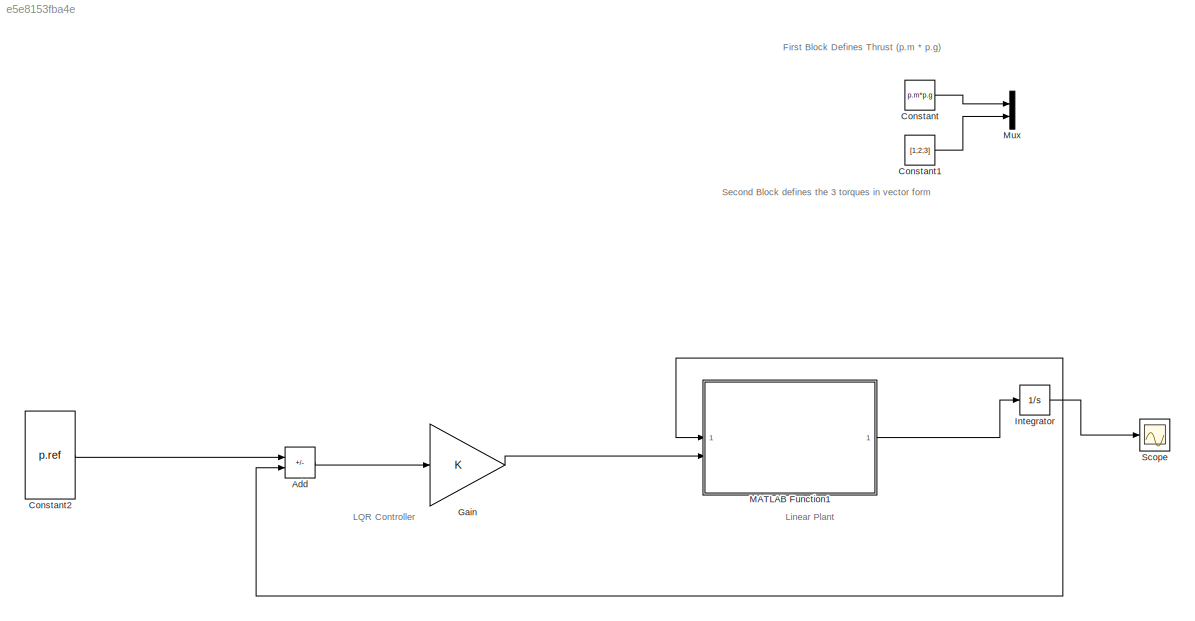
MODEL slx_e5e8153fba4e
KIND model
CONFIG AbsTol = auto
CONFIG EnableMultiTasking = off
CONFIG FixedStep = auto
CONFIG MaxStep = auto
CONFIG MinStep = auto
CONFIG RelTol = 1e-3
CONFIG SampleTimeConstraint = Unconstrained
CONFIG SolverName = VariableStepAuto
CONFIG StartTime = 0.0
CONFIG StopTime = 10.0
BLOCK [Sum] Add
  IconShape = rectangular
  Inputs = +-
BLOCK [Constant] Constant
  Value = p.m*p.g
BLOCK [Constant] Constant1
  Value = [1;2;3]
BLOCK [Constant] Constant2
  Value = p.ref
BLOCK [Gain] Gain
  Gain = K
  Multiplication = Matrix(K*u)
BLOCK [Integrator] Integrator
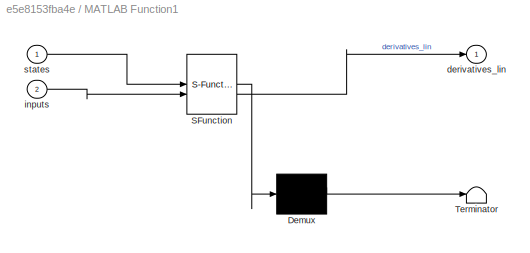
BLOCK [SubSystem] MATLAB Function1
  ErrorFcn = Stateflow.Translate.translate
  PermitHierarchicalResolution = ExplicitOnly
  SFBlockType = MATLAB Function
  TreatAsAtomicUnit = on
BLOCK [Demux] MATLAB Function1/ Demux 
  Outputs = 1
BLOCK [S-Function] MATLAB Function1/ SFunction 
  EnableBusSupport = off
  FunctionName = sf_sfun
  Parameters = p
  PortCounts = [2 2]
  SFcnIsStateOwnerBlock = off
  SFunctionDeploymentMode = off
  Tag = Stateflow S-Function 1
BLOCK [Terminator] MATLAB Function1/ Terminator 
BLOCK [Outport] MATLAB Function1/derivatives_lin
BLOCK [Inport] MATLAB Function1/inputs
  Port = 2
BLOCK [Inport] MATLAB Function1/states
BLOCK [Mux] Mux
  DisplayOption = bar
  Inputs = 2
BLOCK [Scope] Scope
  ActiveDisplayYMaximum = 14.469905611230161
  ActiveDisplayYMinimum = -3.9022015962562087
  Floating = off
  GraphicalSettings = {"Style":{"BackgroundColor":[0.12941176470588237,0.12941176470588237,0.12941176470588237],"AxesColor":[0.07058823529411765,0.07058823529411765,0.07058823529411765],"LabelsColor":[0.8509803921568627,0.8509803921568627,0.8509803921568627],"PreserveColors":false,"Visible":[true,true,true,true,true,true,true,true,true,true,true,true],"LineStyle":["-","-","-","-","-","-","-","-","-","-","-","-"],"LineW...<+3527ch>
  MultipleDisplayCache = [{"MaxYLimMag":11.714719016294206,"MaxYLimReal":14.469905611230161,"MinYLimMag":0,"MinYLimReal":-3.9022015962562087,"PlotAsMagnitudePhase":false,"ShowGrid":true,"ShowLegend":true,"Title":"%<SignalLabel>","YLabel":""}]
  NumInputPorts = 1
  ScopeFrameLocation = window
  ShowLegend = on
  WasSavedAsWebScope = on
  WindowPosition = [488.000000,222.000000,560.000000,420.000000,]
ANNOTATION (root): LQR Controller
ANNOTATION (root): Linear Plant
ANNOTATION (root): First Block Defines Thrust (p.m * p.g)
ANNOTATION (root): Second Block defines the 3 torques in vector form
LINE Add:1 -> Gain:1
LINE Constant1:1 -> Mux:2
LINE Constant2:1 -> Add:1
LINE Constant:1 -> Mux:1
LINE Gain:1 -> MATLAB Function1:2
NET Integrator:1 -> Add:2, MATLAB Function1:1, Scope:1
LINE MATLAB Function1:1 -> Integrator:1
note: NET lines group one-source signal fan-out (src -> all destinations, sorted); 1:1 wires keep LINE
CHART MATLAB Function1 states=1 transitions=1
  STATE_LABEL 'eML_blk_kernel()'
  STATE_LABEL 'SCRIPT:\nfunction derivatives_lin  = derive_lin(states, inputs, p)\n\n    % Angles (roll, pitch, yaw) are small, approx 0\n    % sin(x) = x, cos(x) = x \n\n    % Derivatives are zero\n    % No torques (u2 to u4), but do need u1 = mg\n\n    % eta is [phi, theta, psi] = roll pitch yaw\n    xi= states(1:3); % x, y, z\n    xid = states(4:6); %x_prime, y_prime, z_prime\n    eta = states(7:9); % roll, pitch, yaw \n ...<+1155ch>'
CHART  states=0 transitions=0
